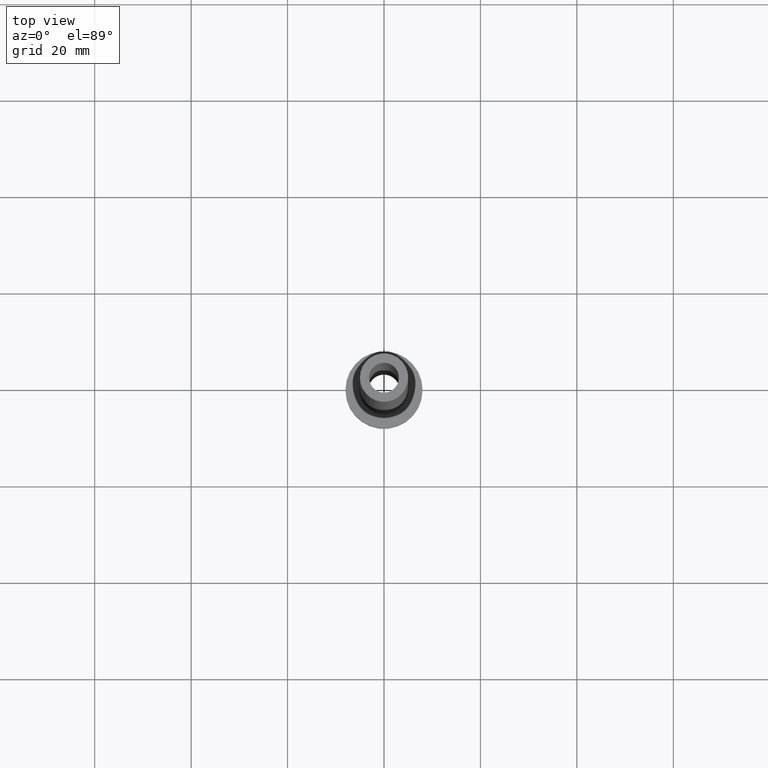
[diagram: clean part render]
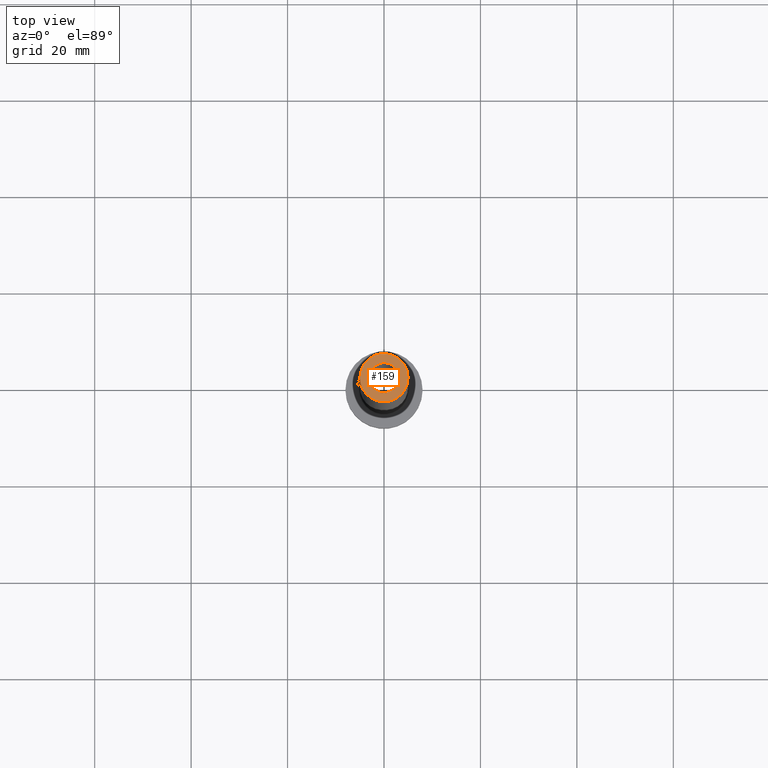
[diagram: same view with one face highlighted and labeled with its STEP entity id]
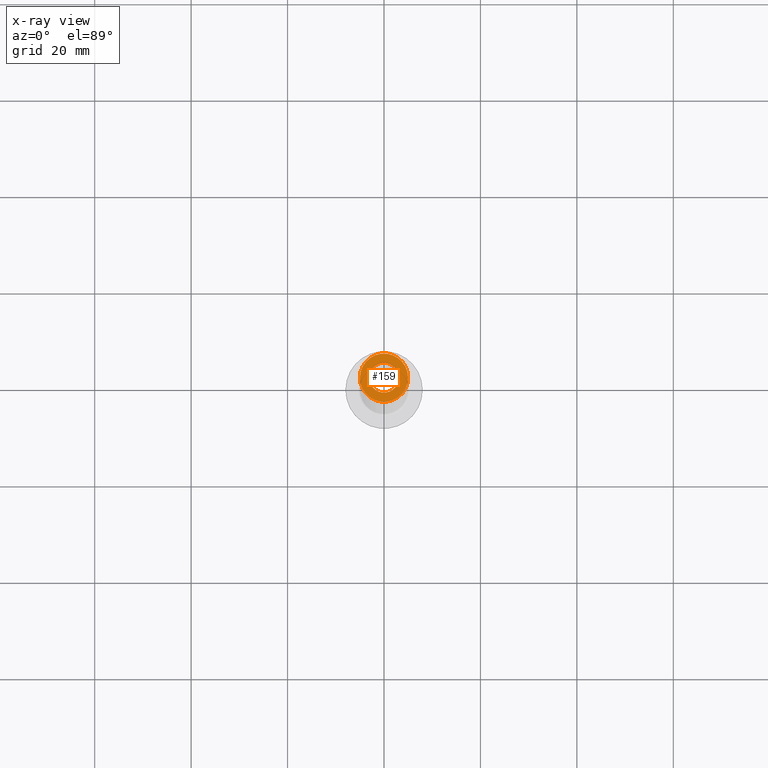
[diagram: x-ray of the same camera — body ghosted, the highlighted face saturated]
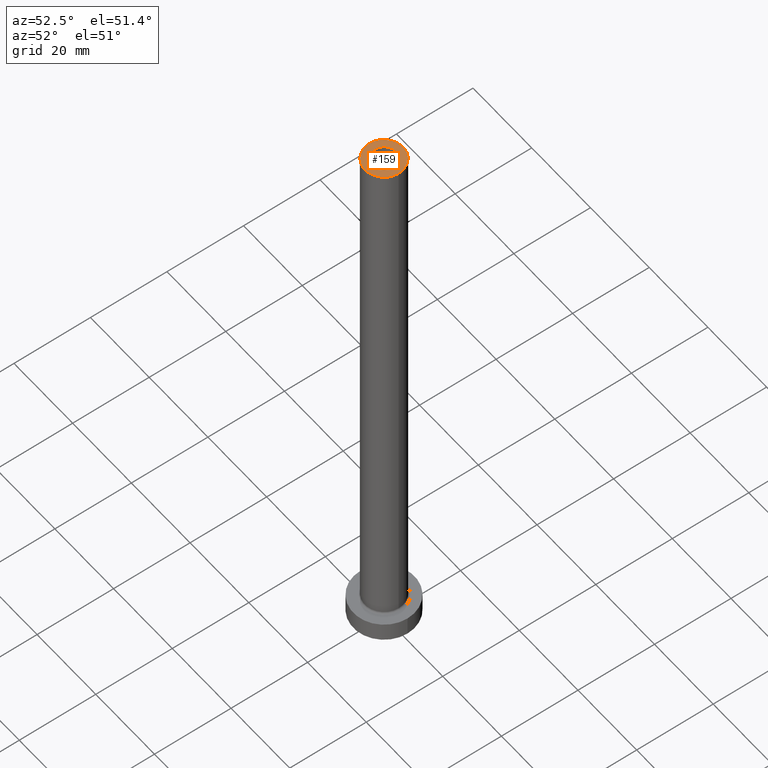
[diagram: same view with one face highlighted and labeled with its STEP entity id]
A machine part, top view. The second image highlights one B-rep face of the part: STEP entity #159.
The next image is the same camera in x-ray: the body ghosted, the highlighted face saturated — about 0% of this face is hidden behind the body in this view.
A second angle (auxiliary view) of the same face is appended — the face is thin or edge-on in the first view.
In plain terms, the highlighted planar face has unit normal (0, 0, 1).
Its self-contained STEP definition (entity closure, byte-faithful):
#12 = VERTEX_POINT ( 'NONE', #343 ) ;
#19 = DIRECTION ( 'NONE',  ( 1.000000000000000000, 0.000000000000000000, 0.000000000000000000 ) ) ;
#32 = AXIS2_PLACEMENT_3D ( 'NONE', #280, #106, #137 ) ;
#43 = EDGE_CURVE ( 'NONE', #250, #65, #395, .T. ) ;
#65 = VERTEX_POINT ( 'NONE', #306 ) ;
#69 = FACE_BOUND ( 'NONE', #184, .T. ) ;
#79 = EDGE_LOOP ( 'NONE', ( #441, #132 ) ) ;
#98 = CARTESIAN_POINT ( 'NONE',  ( 0.000000000000000000, 0.000000000000000000, 150.0000000000000000 ) ) ;
#101 = DIRECTION ( 'NONE',  ( 0.000000000000000000, 0.000000000000000000, 1.000000000000000000 ) ) ;
#106 = DIRECTION ( 'NONE',  ( 0.000000000000000000, 0.000000000000000000, 1.000000000000000000 ) ) ;
#108 = CIRCLE ( 'NONE', #253, 5.000000000000000000 ) ;
#111 = DIRECTION ( 'NONE',  ( 1.000000000000000000, 0.000000000000000000, 0.000000000000000000 ) ) ;
#123 = CARTESIAN_POINT ( 'NONE',  ( 0.000000000000000000, 0.000000000000000000, 150.0000000000000000 ) ) ;
#125 = DIRECTION ( 'NONE',  ( 0.000000000000000000, 0.000000000000000000, 1.000000000000000000 ) ) ;
#132 = ORIENTED_EDGE ( 'NONE', *, *, #218, .T. ) ;
#137 = DIRECTION ( 'NONE',  ( 1.000000000000000000, 0.000000000000000000, -0.000000000000000000 ) ) ;
#139 = AXIS2_PLACEMENT_3D ( 'NONE', #123, #101, #234 ) ;
#159 = ADVANCED_FACE ( 'NONE', ( #69, #318 ), #207, .T. ) ;
#182 = CARTESIAN_POINT ( 'NONE',  ( -3.100000000000000089, 0.000000000000000000, 150.0000000000000000 ) ) ;
#184 = EDGE_LOOP ( 'NONE', ( #319, #255 ) ) ;
#207 = PLANE ( 'NONE',  #32 ) ;
#213 = DIRECTION ( 'NONE',  ( 1.000000000000000000, 0.000000000000000000, 0.000000000000000000 ) ) ;
#214 = CARTESIAN_POINT ( 'NONE',  ( 0.000000000000000000, 0.000000000000000000, 150.0000000000000000 ) ) ;
#218 = EDGE_CURVE ( 'NONE', #404, #12, #108, .T. ) ;
#234 = DIRECTION ( 'NONE',  ( 1.000000000000000000, 0.000000000000000000, 0.000000000000000000 ) ) ;
#249 = DIRECTION ( 'NONE',  ( 0.000000000000000000, 0.000000000000000000, 1.000000000000000000 ) ) ;
#250 = VERTEX_POINT ( 'NONE', #182 ) ;
#253 = AXIS2_PLACEMENT_3D ( 'NONE', #214, #249, #111 ) ;
#255 = ORIENTED_EDGE ( 'NONE', *, *, #381, .F. ) ;
#280 = CARTESIAN_POINT ( 'NONE',  ( 0.000000000000000000, 0.000000000000000000, 150.0000000000000000 ) ) ;
#284 = AXIS2_PLACEMENT_3D ( 'NONE', #288, #125, #213 ) ;
#288 = CARTESIAN_POINT ( 'NONE',  ( 0.000000000000000000, 0.000000000000000000, 150.0000000000000000 ) ) ;
#306 = CARTESIAN_POINT ( 'NONE',  ( 3.100000000000000089, 3.796405077356793932E-16, 150.0000000000000000 ) ) ;
#318 = FACE_OUTER_BOUND ( 'NONE', #79, .T. ) ;
#319 = ORIENTED_EDGE ( 'NONE', *, *, #43, .F. ) ;
#339 = CIRCLE ( 'NONE', #139, 3.100000000000000089 ) ;
#343 = CARTESIAN_POINT ( 'NONE',  ( -5.000000000000000000, 0.000000000000000000, 150.0000000000000000 ) ) ;
#377 = DIRECTION ( 'NONE',  ( 0.000000000000000000, 0.000000000000000000, 1.000000000000000000 ) ) ;
#381 = EDGE_CURVE ( 'NONE', #65, #250, #339, .T. ) ;
#385 = CIRCLE ( 'NONE', #284, 5.000000000000000000 ) ;
#393 = EDGE_CURVE ( 'NONE', #12, #404, #385, .T. ) ;
#395 = CIRCLE ( 'NONE', #397, 3.100000000000000089 ) ;
#397 = AXIS2_PLACEMENT_3D ( 'NONE', #98, #377, #19 ) ;
#404 = VERTEX_POINT ( 'NONE', #461 ) ;
#441 = ORIENTED_EDGE ( 'NONE', *, *, #393, .T. ) ;
#461 = CARTESIAN_POINT ( 'NONE',  ( 5.000000000000000000, 6.123233995736766282E-16, 150.0000000000000000 ) ) ;